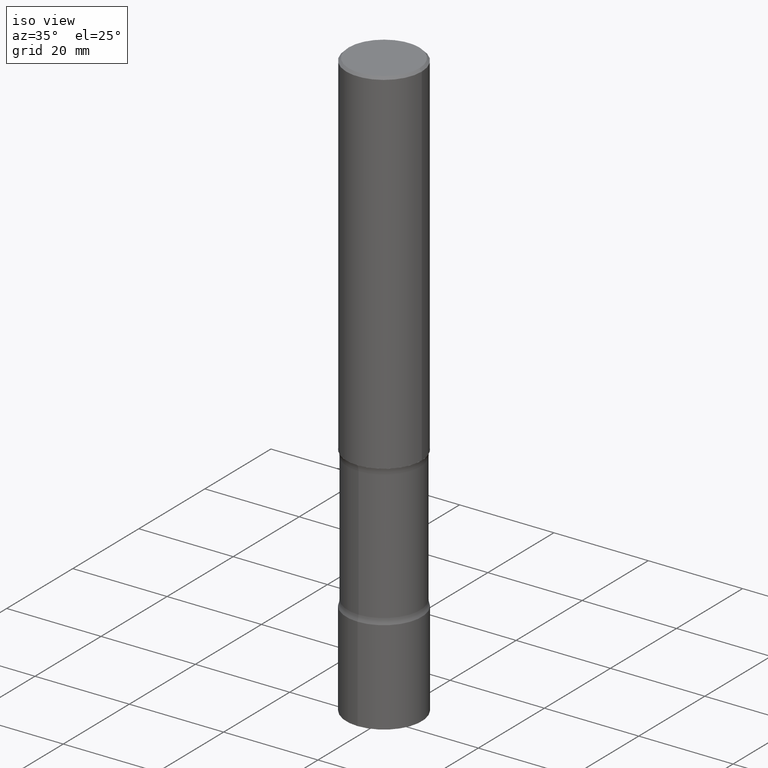
[diagram: clean part render]
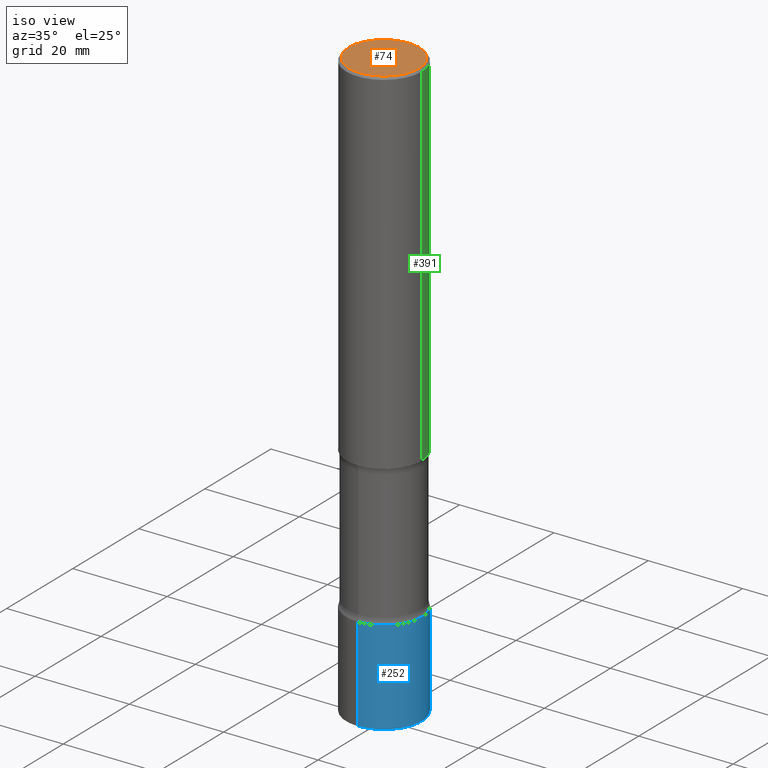
[diagram: same view with three faces highlighted in distinct colors, each labeled with its STEP entity id]
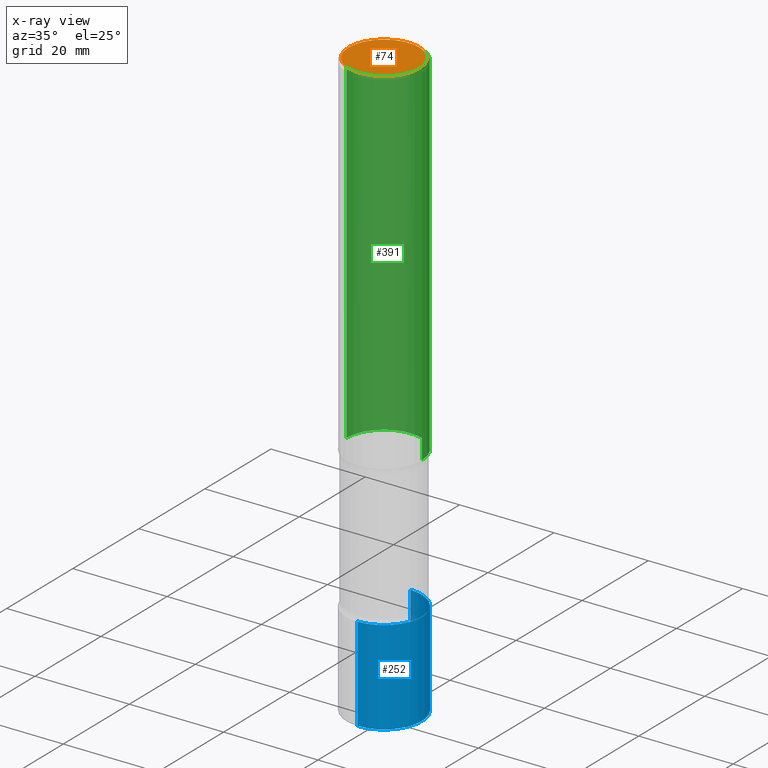
[diagram: x-ray of the same camera — body ghosted, the three highlighted faces saturated]
A machine part, iso view with three faces highlighted in distinct colors.
The next image is the same camera in x-ray (body ghosted, the three faces saturated) — at least one of them is partly hidden behind the body in this view.
Their STEP definitions:

[orange] entity #74 — the highlighted planar face has unit normal (0, -0, -1).
#34 = DIRECTION ( 'NONE',  ( 2.438088387897960049E-29, -3.491481338843145188E-15, -1.000000000000000000 ) ) ;
#47 = CARTESIAN_POINT ( 'NONE',  ( -0.2949499999999997679, 2.094539655171993740E-15, 8.537024980186296424E-18 ) ) ;
#52 = AXIS2_PLACEMENT_3D ( 'NONE', #57, #356, #250 ) ;
#57 = CARTESIAN_POINT ( 'NONE',  ( -2.087702828670439639E-46, 2.980686340760894400E-32, 8.537024980200822558E-18 ) ) ;
#74 = ADVANCED_FACE ( 'NONE', ( #122 ), #352, .F. ) ;
#78 = AXIS2_PLACEMENT_3D ( 'NONE', #373, #258, #499 ) ;
#122 = FACE_OUTER_BOUND ( 'NONE', #441, .T. ) ;
#125 = CARTESIAN_POINT ( 'NONE',  ( 0.2949499999999997679, -2.127023677808858103E-15, 8.537024980215462707E-18 ) ) ;
#151 = AXIS2_PLACEMENT_3D ( 'NONE', #269, #34, #466 ) ;
#193 = CIRCLE ( 'NONE', #78, 0.2949499999999997679 ) ;
#250 = DIRECTION ( 'NONE',  ( 1.000000000000000000, -6.982962677686265922E-15, 4.876053491004738270E-29 ) ) ;
#258 = DIRECTION ( 'NONE',  ( -2.445468806185136597E-29, 3.491481338843145583E-15, 1.000000000000000000 ) ) ;
#269 = CARTESIAN_POINT ( 'NONE',  ( 2.059624841783562486E-15, 0.2949499999999997679, -1.025543908401684366E-15 ) ) ;
#271 = CIRCLE ( 'NONE', #52, 0.2949499999999997679 ) ;
#282 = ORIENTED_EDGE ( 'NONE', *, *, #421, .T. ) ;
#285 = EDGE_CURVE ( 'NONE', #357, #317, #271, .T. ) ;
#313 = ORIENTED_EDGE ( 'NONE', *, *, #285, .T. ) ;
#317 = VERTEX_POINT ( 'NONE', #125 ) ;
#352 = PLANE ( 'NONE',  #151 ) ;
#356 = DIRECTION ( 'NONE',  ( -2.445468806185136597E-29, 3.491481338843145583E-15, 1.000000000000000000 ) ) ;
#357 = VERTEX_POINT ( 'NONE', #47 ) ;
#373 = CARTESIAN_POINT ( 'NONE',  ( -2.087702828670439639E-46, 2.980686340760894400E-32, 8.537024980200822558E-18 ) ) ;
#421 = EDGE_CURVE ( 'NONE', #317, #357, #193, .T. ) ;
#441 = EDGE_LOOP ( 'NONE', ( #313, #282 ) ) ;
#466 = DIRECTION ( 'NONE',  ( -1.000000000000000000, 6.982962677686265922E-15, -4.876176775795935793E-29 ) ) ;
#499 = DIRECTION ( 'NONE',  ( 1.000000000000000000, -6.982962677686265922E-15, 4.876053491004738270E-29 ) ) ;

[blue] entity #252 — the highlighted cylindrical surface (partial cylindrical patch) has radius 7.9997 mm, axis along (-0, 0, 1).
#16 = DIRECTION ( 'NONE',  ( -2.446398916777509220E-29, 3.490149367536260622E-15, 1.000000000000000000 ) ) ;
#21 = CIRCLE ( 'NONE', #495, 0.3149500000000000632 ) ;
#40 = CARTESIAN_POINT ( 'NONE',  ( -2.199284095337289871E-15, -0.3149500000000000632, 1.099222543305545587E-15 ) ) ;
#62 = VECTOR ( 'NONE', #120, 39.37007874015748143 ) ;
#76 = DIRECTION ( 'NONE',  ( -2.446398916777509220E-29, 3.490149367536260622E-15, 1.000000000000000000 ) ) ;
#87 = DIRECTION ( 'NONE',  ( -2.446398916777509220E-29, 3.490149367536260622E-15, 1.000000000000000000 ) ) ;
#89 = VERTEX_POINT ( 'NONE', #274 ) ;
#93 = DIRECTION ( 'NONE',  ( -2.446398916777509500E-29, 3.490149367536260622E-15, 1.000000000000000000 ) ) ;
#120 = DIRECTION ( 'NONE',  ( -2.446398916777509500E-29, 3.490149367536260622E-15, 1.000000000000000000 ) ) ;
#129 = CARTESIAN_POINT ( 'NONE',  ( 2.237854346276435590E-15, 0.3149500000000000632, -1.099222543305545587E-15 ) ) ;
#131 = ORIENTED_EDGE ( 'NONE', *, *, #351, .T. ) ;
#133 = DIRECTION ( 'NONE',  ( -6.982962677686265922E-15, -1.000000000000000000, 3.490149367536261016E-15 ) ) ;
#143 = EDGE_CURVE ( 'NONE', #248, #89, #314, .T. ) ;
#158 = CARTESIAN_POINT ( 'NONE',  ( 1.203946298913715486E-28, -1.717607208245619996E-14, -4.921299999999999564 ) ) ;
#176 = EDGE_CURVE ( 'NONE', #248, #294, #279, .T. ) ;
#206 = CARTESIAN_POINT ( 'NONE',  ( 0.000000000000000000, 0.000000000000000000, 0.000000000000000000 ) ) ;
#211 = LINE ( 'NONE', #129, #400 ) ;
#213 = CARTESIAN_POINT ( 'NONE',  ( 2.237854346276546425E-15, 0.3149499999999829103, -4.921300000000000452 ) ) ;
#231 = DIRECTION ( 'NONE',  ( -6.982962677686265922E-15, -1.000000000000000000, 3.469564049740292375E-15 ) ) ;
#239 = CARTESIAN_POINT ( 'NONE',  ( 2.237854346276555892E-15, 0.3149499999999856859, -4.133900000000000574 ) ) ;
#241 = CYLINDRICAL_SURFACE ( 'NONE', #310, 0.3149500000000000632 ) ;
#248 = VERTEX_POINT ( 'NONE', #445 ) ;
#252 = ADVANCED_FACE ( 'NONE', ( #320 ), #241, .T. ) ;
#259 = ORIENTED_EDGE ( 'NONE', *, *, #143, .F. ) ;
#268 = EDGE_CURVE ( 'NONE', #89, #326, #21, .T. ) ;
#274 = CARTESIAN_POINT ( 'NONE',  ( -2.199284095337188897E-15, -0.3149500000000144961, -4.133899999999997910 ) ) ;
#279 = CIRCLE ( 'NONE', #389, 0.3149500000000000632 ) ;
#286 = DIRECTION ( 'NONE',  ( -6.982962677686265922E-15, -1.000000000000000000, 3.469564049740292375E-15 ) ) ;
#294 = VERTEX_POINT ( 'NONE', #213 ) ;
#310 = AXIS2_PLACEMENT_3D ( 'NONE', #206, #16, #133 ) ;
#314 = LINE ( 'NONE', #40, #62 ) ;
#320 = FACE_OUTER_BOUND ( 'NONE', #346, .T. ) ;
#326 = VERTEX_POINT ( 'NONE', #239 ) ;
#346 = EDGE_LOOP ( 'NONE', ( #396, #131, #405, #259 ) ) ;
#351 = EDGE_CURVE ( 'NONE', #294, #326, #211, .T. ) ;
#389 = AXIS2_PLACEMENT_3D ( 'NONE', #158, #76, #231 ) ;
#396 = ORIENTED_EDGE ( 'NONE', *, *, #176, .T. ) ;
#400 = VECTOR ( 'NONE', #93, 39.37007874015748143 ) ;
#405 = ORIENTED_EDGE ( 'NONE', *, *, #268, .F. ) ;
#445 = CARTESIAN_POINT ( 'NONE',  ( -2.199284095337169570E-15, -0.3149500000000172162, -4.921299999999998676 ) ) ;
#448 = CARTESIAN_POINT ( 'NONE',  ( 1.011316848206654349E-28, -1.442792847045814558E-14, -4.133899999999999686 ) ) ;
#495 = AXIS2_PLACEMENT_3D ( 'NONE', #448, #87, #286 ) ;

[green] entity #391 — the highlighted cylindrical surface (partial cylindrical patch) has radius 7.9997 mm, axis along (-0, 0, 1).
#7 = EDGE_CURVE ( 'NONE', #234, #332, #438, .T. ) ;
#8 = CARTESIAN_POINT ( 'NONE',  ( 4.890937612370273159E-31, -6.982962677686291609E-17, -0.02000000000000000042 ) ) ;
#24 = DIRECTION ( 'NONE',  ( 1.000000000000000000, -6.982962677686265922E-15, 4.876176775795935232E-29 ) ) ;
#30 = DIRECTION ( 'NONE',  ( -2.445468806185136597E-29, 3.491481338843145583E-15, 1.000000000000000000 ) ) ;
#79 = LINE ( 'NONE', #425, #102 ) ;
#82 = CARTESIAN_POINT ( 'NONE',  ( 0.3149499999999997302, -2.230543471175005083E-15, -0.02000000000000000042 ) ) ;
#83 = EDGE_CURVE ( 'NONE', #234, #134, #116, .T. ) ;
#85 = DIRECTION ( 'NONE',  ( -2.445468806185136877E-29, 3.491481338843145188E-15, 1.000000000000000000 ) ) ;
#88 = AXIS2_PLACEMENT_3D ( 'NONE', #8, #316, #364 ) ;
#102 = VECTOR ( 'NONE', #85, 39.37007874015748143 ) ;
#106 = EDGE_CURVE ( 'NONE', #332, #492, #79, .T. ) ;
#116 = LINE ( 'NONE', #342, #344 ) ;
#134 = VERTEX_POINT ( 'NONE', #82 ) ;
#200 = CIRCLE ( 'NONE', #88, 0.3149499999999997302 ) ;
#216 = AXIS2_PLACEMENT_3D ( 'NONE', #494, #253, #24 ) ;
#234 = VERTEX_POINT ( 'NONE', #362 ) ;
#243 = FACE_OUTER_BOUND ( 'NONE', #436, .T. ) ;
#253 = DIRECTION ( 'NONE',  ( -2.445468806185136597E-29, 3.491481338843145583E-15, 1.000000000000000000 ) ) ;
#254 = ORIENTED_EDGE ( 'NONE', *, *, #83, .F. ) ;
#260 = CARTESIAN_POINT ( 'NONE',  ( -0.3149499999999997302, 2.129454468560424995E-15, -0.02000000000000000042 ) ) ;
#283 = CARTESIAN_POINT ( 'NONE',  ( -0.3149500000000000077, -2.951883515780012562E-15, -2.952799999999998981 ) ) ;
#304 = EDGE_CURVE ( 'NONE', #134, #492, #200, .T. ) ;
#316 = DIRECTION ( 'NONE',  ( -2.445468806185136597E-29, 3.491481338843145583E-15, 1.000000000000000000 ) ) ;
#332 = VERTEX_POINT ( 'NONE', #283 ) ;
#338 = DIRECTION ( 'NONE',  ( 1.000000000000000000, -6.982962677686269866E-15, 0.000000000000000000 ) ) ;
#342 = CARTESIAN_POINT ( 'NONE',  ( 0.3149499999999998967, -2.199284095337288688E-15, 1.535751875536929289E-29 ) ) ;
#344 = VECTOR ( 'NONE', #433, 39.37007874015748143 ) ;
#362 = CARTESIAN_POINT ( 'NONE',  ( 0.3149500000000000077, -1.250893019267332682E-14, -2.952799999999998981 ) ) ;
#364 = DIRECTION ( 'NONE',  ( 1.000000000000000000, -6.982962677686266711E-15, 0.000000000000000000 ) ) ;
#375 = CARTESIAN_POINT ( 'NONE',  ( 7.220980290903469061E-29, -1.030964609733603695E-14, -2.952799999999998981 ) ) ;
#384 = ORIENTED_EDGE ( 'NONE', *, *, #7, .T. ) ;
#391 = ADVANCED_FACE ( 'NONE', ( #243 ), #415, .T. ) ;
#411 = AXIS2_PLACEMENT_3D ( 'NONE', #375, #30, #338 ) ;
#415 = CYLINDRICAL_SURFACE ( 'NONE', #216, 0.3149499999999998967 ) ;
#425 = CARTESIAN_POINT ( 'NONE',  ( -0.3149499999999998967, 2.237854346276434801E-15, -1.549218606675782116E-29 ) ) ;
#433 = DIRECTION ( 'NONE',  ( -2.445468806185136877E-29, 3.491481338843145188E-15, 1.000000000000000000 ) ) ;
#436 = EDGE_LOOP ( 'NONE', ( #384, #498, #487, #254 ) ) ;
#438 = CIRCLE ( 'NONE', #411, 0.3149500000000000077 ) ;
#487 = ORIENTED_EDGE ( 'NONE', *, *, #304, .F. ) ;
#492 = VERTEX_POINT ( 'NONE', #260 ) ;
#494 = CARTESIAN_POINT ( 'NONE',  ( 0.000000000000000000, 0.000000000000000000, 0.000000000000000000 ) ) ;
#498 = ORIENTED_EDGE ( 'NONE', *, *, #106, .T. ) ;